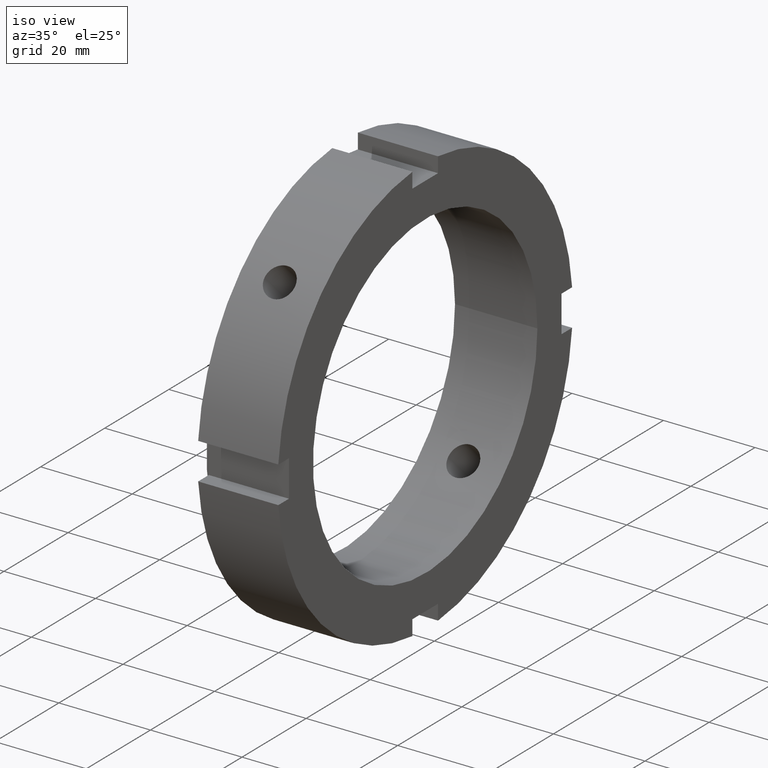
[diagram: clean part render]
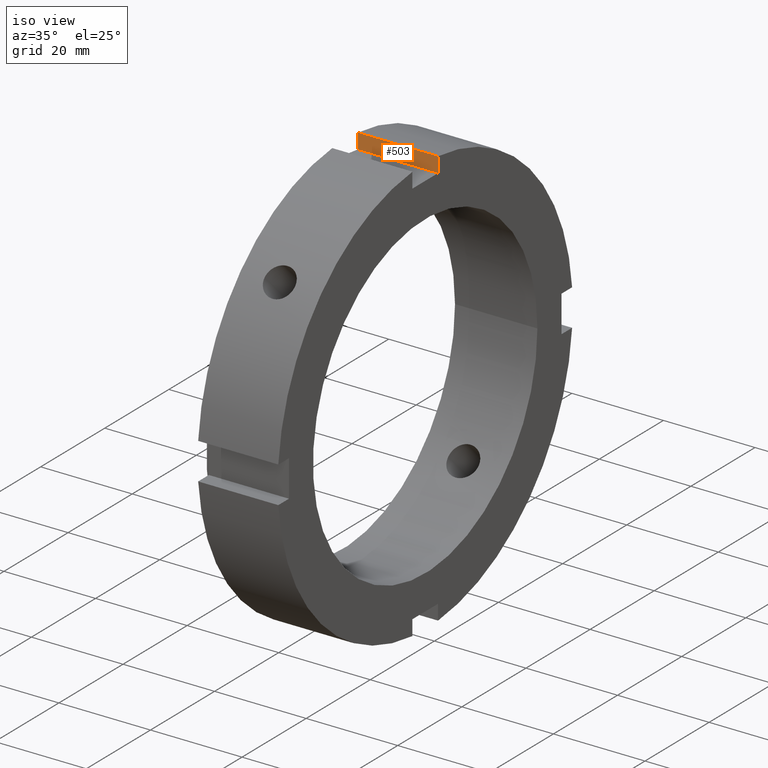
[diagram: same view with one face highlighted and labeled with its STEP entity id]
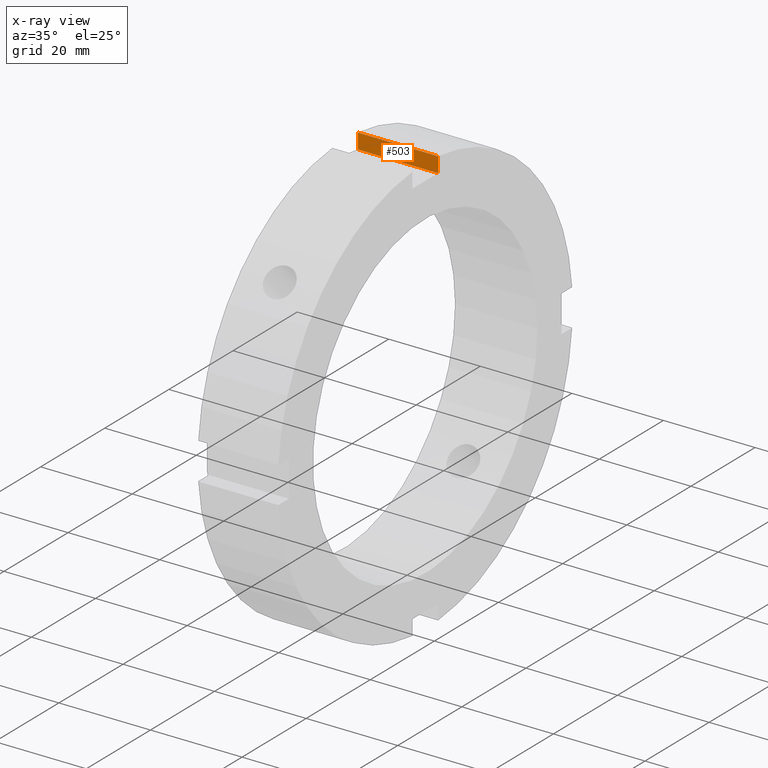
[diagram: x-ray of the same camera — body ghosted, the highlighted face saturated]
A machine part, iso view. The second image highlights one B-rep face of the part: STEP entity #503.
The next image is the same camera in x-ray: the body ghosted, the highlighted face saturated — about 0% of this face is hidden behind the body in this view.
In plain terms, the highlighted planar face has unit normal (0, 1, 0).
Its self-contained STEP definition (entity closure, byte-faithful):
#464=CARTESIAN_POINT('',(17.999999999999993,4.000000000000001,42.500000000000000));
#465=DIRECTION('',(0.0,1.0,0.0));
#466=DIRECTION('',(-1.0,0.0,0.0));
#467=AXIS2_PLACEMENT_3D('',#464,#465,#466);
#468=PLANE('',#467);
#469=CARTESIAN_POINT('',(0.499999999999989,4.000000000000001,42.500000000000000));
#470=VERTEX_POINT('',#469);
#471=CARTESIAN_POINT('',(0.499999999999989,4.000000000000001,45.825756949558411));
#472=VERTEX_POINT('',#471);
#473=CARTESIAN_POINT('',(0.499999999999989,4.000000000000004,42.500000000000000));
#474=DIRECTION('',(0.0,0.0,1.0));
#475=VECTOR('',#474,3.325756949558411);
#476=LINE('',#473,#475);
#477=EDGE_CURVE('',#470,#472,#476,.T.);
#478=ORIENTED_EDGE('',*,*,#477,.F.);
#479=CARTESIAN_POINT('',(17.999999999999993,4.000000000000001,42.500000000000000));
#480=VERTEX_POINT('',#479);
#481=CARTESIAN_POINT('',(17.999999999999993,4.000000000000001,42.500000000000000));
#482=DIRECTION('',(-1.0,0.0,0.0));
#483=VECTOR('',#482,17.500000000000004);
#484=LINE('',#481,#483);
#485=EDGE_CURVE('',#480,#470,#484,.T.);
#486=ORIENTED_EDGE('',*,*,#485,.F.);
#487=CARTESIAN_POINT('',(17.999999999999993,4.000000000000001,45.825756949558397));
#488=VERTEX_POINT('',#487);
#489=CARTESIAN_POINT('',(17.999999999999993,4.000000000000001,45.825756949558397));
#490=DIRECTION('',(0.0,0.0,-1.0));
#491=VECTOR('',#490,3.325756949558397);
#492=LINE('',#489,#491);
#493=EDGE_CURVE('',#488,#480,#492,.T.);
#494=ORIENTED_EDGE('',*,*,#493,.F.);
#495=CARTESIAN_POINT('',(0.499999999999989,4.000000000000001,45.825756949558397));
#496=DIRECTION('',(1.0,0.0,0.0));
#497=VECTOR('',#496,17.500000000000004);
#498=LINE('',#495,#497);
#499=EDGE_CURVE('',#472,#488,#498,.T.);
#500=ORIENTED_EDGE('',*,*,#499,.F.);
#501=EDGE_LOOP('',(#478,#486,#494,#500));
#502=FACE_OUTER_BOUND('',#501,.T.);
#503=ADVANCED_FACE('',(#502),#468,.F.);